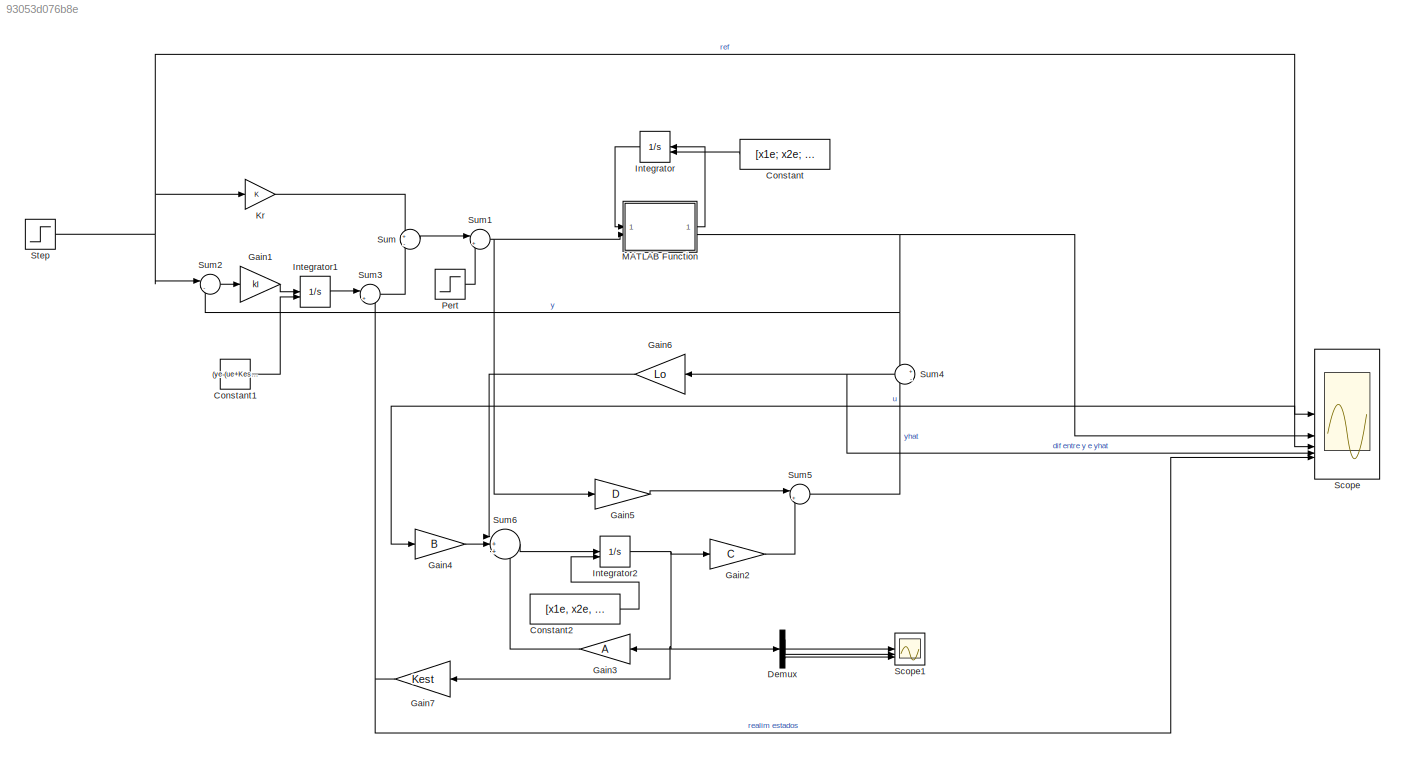
MODEL slx_93053d076b8e
KIND model
CONFIG AbsTol = auto
CONFIG EnableMultiTasking = off
CONFIG MaxStep = auto
CONFIG MinStep = auto
CONFIG RelTol = 1e-3
CONFIG SampleTimeConstraint = Unconstrained
CONFIG SolverName = VariableStepAuto
CONFIG StartTime = 0.0
CONFIG StopTime = 10
BLOCK [Constant] Constant
  NameLocation = top
  Value = [x1e; x2e; x3e]
BLOCK [Constant] Constant1
  Value = (ye-(ue+Kest*xeq))
BLOCK [Constant] Constant2
  Value = [x1e, x2e, x3e]
BLOCK [Demux] Demux
  Outputs = 3
BLOCK [Gain] Gain1
  Gain = kI
BLOCK [Gain] Gain2
  Gain = C
  Multiplication = Matrix(K*u)
BLOCK [Gain] Gain3
  Gain = A
  Multiplication = Matrix(K*u)
  NameLocation = top
BLOCK [Gain] Gain4
  Gain = B
  Multiplication = Matrix(K*u)
BLOCK [Gain] Gain5
  Gain = D
  Multiplication = Matrix(K*u)
BLOCK [Gain] Gain6
  Gain = Lo
  Multiplication = Matrix(K*u)
  NameLocation = top
BLOCK [Gain] Gain7
  Gain = Kest
  Multiplication = Matrix(K*u)
  NameLocation = top
BLOCK [Integrator] Integrator
  InitialConditionSource = external
  NameLocation = top
BLOCK [Integrator] Integrator1
  InitialConditionSource = external
BLOCK [Integrator] Integrator2
  InitialConditionSource = external
BLOCK [Gain] Kr
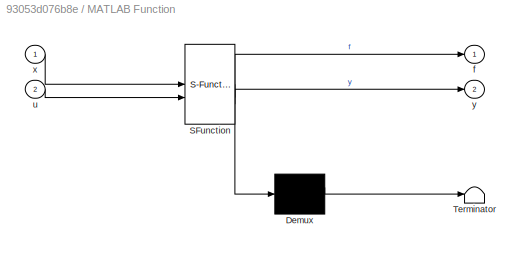
BLOCK [SubSystem] MATLAB Function
  ErrorFcn = Stateflow.Translate.translate
  PermitHierarchicalResolution = ExplicitOnly
  SFBlockType = MATLAB Function
  TreatAsAtomicUnit = on
BLOCK [Demux] MATLAB Function/ Demux 
  Outputs = 1
BLOCK [S-Function] MATLAB Function/ SFunction 
  EnableBusSupport = on
  FunctionName = sf_sfun
  PortCounts = [2 3]
  SFcnIsStateOwnerBlock = off
  SFunctionDeploymentMode = off
  Tag = Stateflow S-Function 2
BLOCK [Terminator] MATLAB Function/ Terminator 
BLOCK [Outport] MATLAB Function/f
BLOCK [Inport] MATLAB Function/u
  Port = 2
BLOCK [Inport] MATLAB Function/x
BLOCK [Outport] MATLAB Function/y
  Port = 2
BLOCK [Step] Pert
  After = 0.5
  SampleTime = 0
  Time = 7
BLOCK [Scope] Scope
  Floating = off
  NumInputPorts = 5
  ScopeSpecificationString = Simulink.scopes.TimeScopeBlockCfg('CurrentConfiguration', extmgr.ConfigurationSet(extmgr.Configuration('Core','General UI',true),extmgr.Configuration('Core','Source UI',true),extmgr.Configuration('Sources','WiredSimulink',true),extmgr.Configuration('Visuals','Time Domain',true,'SerializedDisplays',{struct('MinYLimReal','0.9875','MaxYLimReal','1.1125','YLabelReal','','MinYLimMag','0.9875','MaxYLimM...<+3374ch>
BLOCK [Scope] Scope1
  Floating = off
  NumInputPorts = 3
  ScopeSpecificationString = Simulink.scopes.TimeScopeBlockCfg('CurrentConfiguration', extmgr.ConfigurationSet(extmgr.Configuration('Core','General UI',true),extmgr.Configuration('Core','Source UI',true),extmgr.Configuration('Sources','WiredSimulink',true,'DataLoggingVariableName','ScopeData1'),extmgr.Configuration('Visuals','Time Domain',true,'SerializedDisplays',{struct('MinYLimReal','-912.24619','MaxYLimReal','163.08384','...<+2655ch>
BLOCK [Step] Step
  After = 1.1
  Before = 1
  SampleTime = 0
  Time = 5
BLOCK [Sum] Sum
  Inputs = +|-
BLOCK [Sum] Sum1
  Inputs = |++
BLOCK [Sum] Sum2
  Inputs = |-+
BLOCK [Sum] Sum3
  Inputs = |++
BLOCK [Sum] Sum4
  Inputs = +|-
  NameLocation = top
BLOCK [Sum] Sum5
  Inputs = |++
BLOCK [Sum] Sum6
  Inputs = |++|+
LINE Constant1:1 -> Integrator1:2
LINE Constant2:1 -> Integrator2:2
LINE Constant:1 -> Integrator:2
LINE Demux:1 -> Scope1:1
LINE Demux:2 -> Scope1:2
LINE Demux:3 -> Scope1:3
LINE Gain1:1 -> Integrator1:1
LINE Gain2:1 -> Sum5:2
LINE Gain3:1 -> Sum6:3
LINE Gain4:1 -> Sum6:2
LINE Gain5:1 -> Sum5:1
LINE Gain6:1 -> Sum6:1
NET Gain7:1 -> Scope:5, Sum3:2
LINE Integrator1:1 -> Sum3:1
NET Integrator2:1 -> Demux:1, Gain2:1, Gain3:1, Gain7:1
LINE Integrator:1 -> MATLAB Function:1
LINE Kr:1 -> Sum:1
LINE MATLAB Function:1 -> Integrator:1
NET MATLAB Function:2 -> Scope:2, Sum2:2, Sum4:1
LINE Pert:1 -> Sum1:2
NET Step:1 -> Kr:1, Scope:1, Sum2:1
NET Sum1:1 -> Gain4:1, Gain5:1, MATLAB Function:2, Scope:3
LINE Sum2:1 -> Gain1:1
LINE Sum3:1 -> Sum:2
NET Sum4:1 -> Gain6:1, Scope:4
LINE Sum5:1 -> Sum4:2
LINE Sum6:1 -> Integrator2:1
LINE Sum:1 -> Sum1:1
note: NET lines group one-source signal fan-out (src -> all destinations, sorted); 1:1 wires keep LINE
CHART MATLAB Function states=1 transitions=1
  STATE_LABEL 'eML_blk_kernel()'
  STATE_LABEL 'SCRIPT:\nfunction [f,y] = fcn(x,u)\n%Parámetros del problema\nR=4;\nL=1e-2;\nm=0.1;\ng=10;\n\n% Definir funciones de derivadas (f)\nf1=u/L-(R/L)*x(1);\nf2=x(3);\nf3=g-(x(1))/(x(2)*m);\n\nf = [f1; f2; f3];\n\n% Definir la salida\xa0y\ny=x(2);\n'
CHART  states=0 transitions=0
